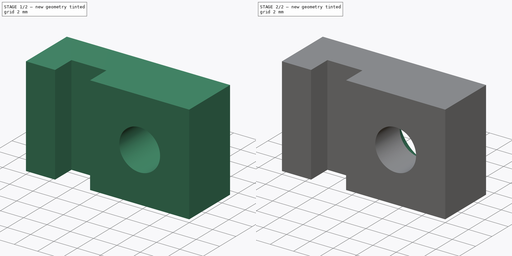
[diagram: build sequence overview — one tinted view per stage of 2, left to right]
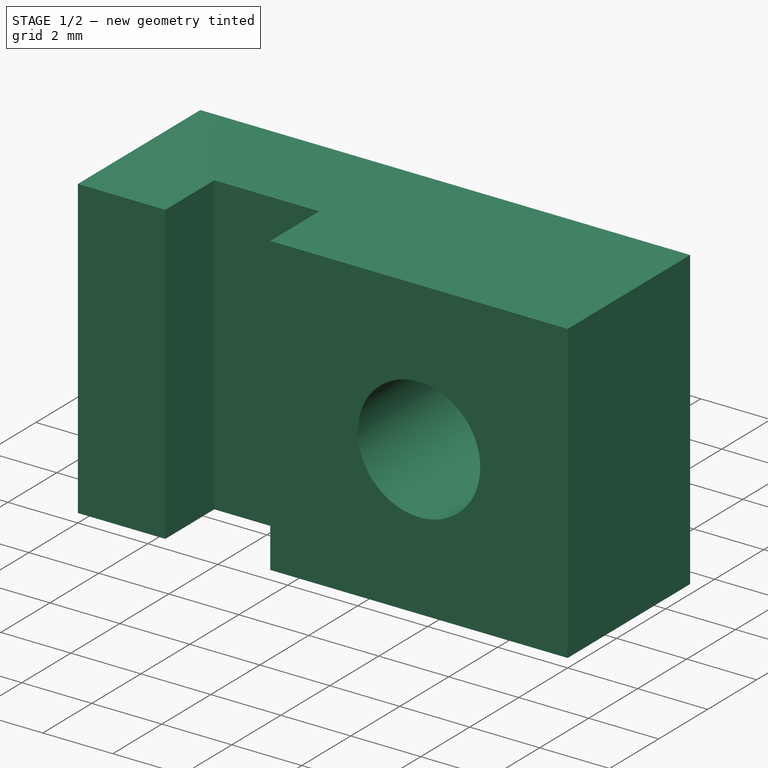
[diagram: stage 1 of 2 — iso view after this stage's code; geometry added in this stage tinted green]
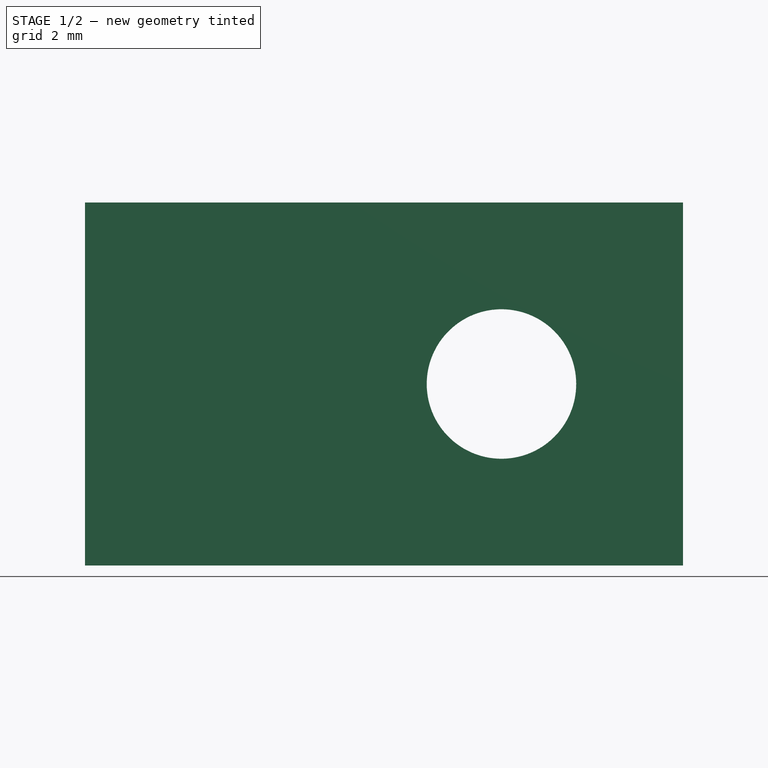
[diagram: stage 1 of 2 — front view after this stage's code; geometry added in this stage tinted green]
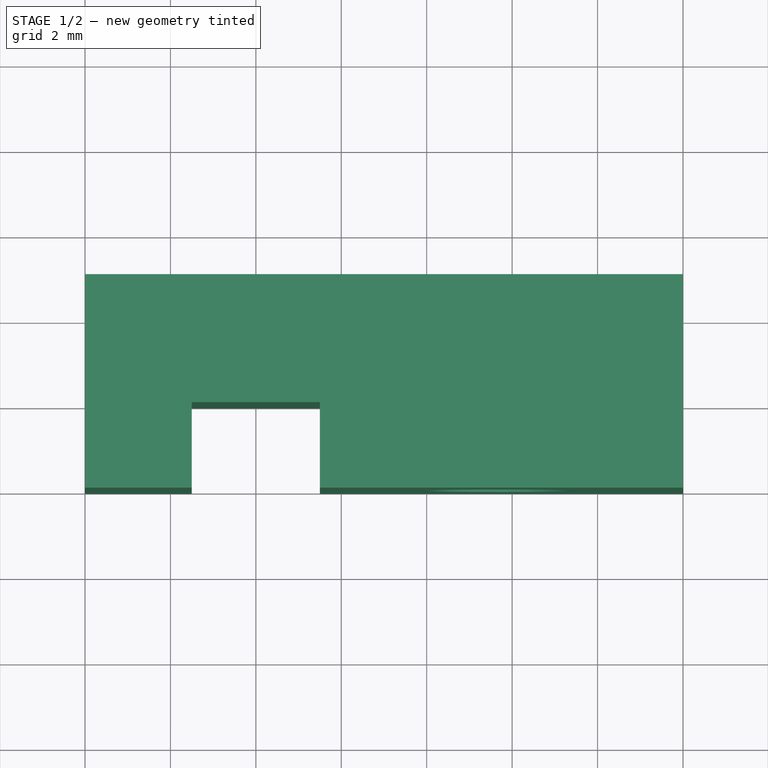
[diagram: stage 1 of 2 — top view after this stage's code; geometry added in this stage tinted green]
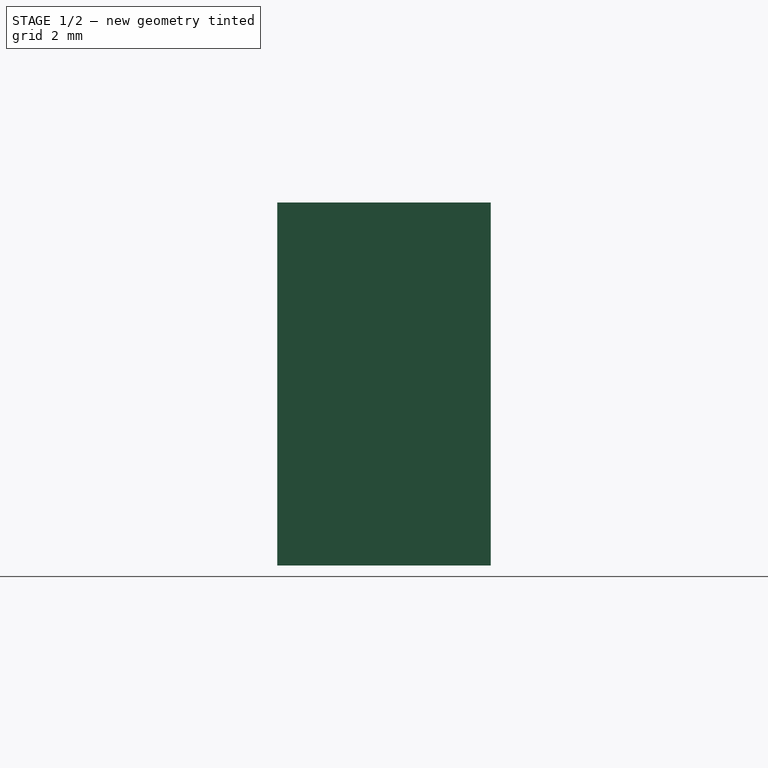
[diagram: stage 1 of 2 — right view after this stage's code; geometry added in this stage tinted green]
FCSTD DOCUMENT  (FreeCAD 0.19R)
Label: cable-tie-mount
License: All rights reserved
LicenseURL: http://en.wikipedia.org/wiki/All_rights_reserved
objects: Sketcher::SketchObject×2, PartDesign::Pad×1, PartDesign::Pocket×1, PartDesign::Chamfer×1, PartDesign::Body×1
note: 9 computed .brp shape members not serialized (recipe doc carries the construction recipe); baked Part::Feature solids carry a one-line shape summary decoded from their .brp

FEATURE [Sketcher::SketchObject] Sketch003  label="Sketch"
  FullyConstrained = true
  MapMode = 5
  Support = -> [XY_Plane001]
  sketch-geometry (8):
    g0: LineSegment StartX=0 StartY=0 StartZ=0 EndX=0 EndY=5 EndZ=0
    g1: LineSegment StartX=0 StartY=0 StartZ=0 EndX=2.5 EndY=0 EndZ=0
    g2: LineSegment StartX=2.5 StartY=0 StartZ=0 EndX=2.5 EndY=2 EndZ=0
    g3: LineSegment StartX=2.5 StartY=2 StartZ=0 EndX=5.5 EndY=2 EndZ=0
    g4: LineSegment StartX=5.5 StartY=2 StartZ=0 EndX=5.5 EndY=0 EndZ=0
    g5: LineSegment StartX=5.5 StartY=0 StartZ=0 EndX=14 EndY=0 EndZ=0
    g6: LineSegment StartX=14 StartY=0 StartZ=0 EndX=14 EndY=5 EndZ=0
    g7: LineSegment StartX=14 StartY=5 StartZ=0 EndX=0 EndY=5 EndZ=0
  constraints (23):
    c: Coincident(g0,g-1)
    c: PointOnObject(g0,g-2)
    c: Coincident(g1,g0)
    c: PointOnObject(g1,g-1)
    c: Coincident(g2,g1)
    c: Vertical(g2)
    c: Coincident(g3,g2)
    c: Horizontal(g3)
    c: Coincident(g4,g3)
    c: PointOnObject(g4,g-1)
    c: Coincident(g5,g4)
    c: PointOnObject(g5,g-1)
    c: Coincident(g6,g5)
    c: Vertical(g6)
    c: Coincident(g7,g6)
    c: Coincident(g7,g0)
    c: Vertical(g4)
    c: Horizontal(g7)
    c: DistanceX(g5,g5) = 8.5
    c: DistanceY(g6,g6) = 5
    c: DistanceX(g3,g3) = 3
    c: DistanceX(g1,g1) = 2.5
    c: DistanceY(g2,g2) = 2
FEATURE [PartDesign::Pad] Pad001  label="Pad"
  Direction = (1,1,1)
  Length = 8.5
  Length2 = 100
  Profile = -> Sketch003
  Type = 0
FEATURE [Sketcher::SketchObject] Sketch004  label="Sketch001"
  FullyConstrained = true
  MapMode = 5
  Placement = pos=(0,5,0) rot=(0,0.707107,0.707107;3.14159rad)
  Support = -> [Pad001]
  sketch-geometry (7):
    g0: LineSegment StartX=-5.5 StartY=0 StartZ=0 EndX=-14 EndY=0 EndZ=0
    g1: LineSegment StartX=-14 StartY=0 StartZ=0 EndX=-14 EndY=8.5 EndZ=0
    g2: LineSegment StartX=-14 StartY=8.5 StartZ=0 EndX=-5.5 EndY=8.5 EndZ=0
    g3: LineSegment StartX=-5.5 StartY=8.5 StartZ=0 EndX=-5.5 EndY=0 EndZ=0
    g4: LineSegment StartX=-14 StartY=0 StartZ=0 EndX=-5.5 EndY=8.5 EndZ=0
    g5: LineSegment StartX=-14 StartY=8.5 StartZ=0 EndX=-5.5 EndY=0 EndZ=0
    g6: Circle CenterX=-9.75 CenterY=4.25 CenterZ=0 NormalX=0 NormalY=0 NormalZ=1 AngleXU=0 Radius=1.75
  constraints (19):
    c: Coincident(g0,g1)
    c: Coincident(g1,g2)
    c: Coincident(g2,g3)
    c: Coincident(g3,g0)
    c: Horizontal(g0)
    c: Horizontal(g2)
    c: Vertical(g1)
    c: Vertical(g3)
    c: Equal(g2,g3)
    c: DistanceX(g2,g2) = 8.5
    c: Coincident(g4,g0)
    c: Coincident(g4,g2)
    c: Coincident(g5,g1)
    c: PointOnObject(g6,g4)
    c: PointOnObject(g6,g5)
    c: Diameter(g6) = 3.5
    c: Coincident(g5,g0)
    c: PointOnObject(g0,g-1)
    c: DistanceX(g0,g-1) = 5.5
FEATURE [PartDesign::Pocket] Pocket002  label="Pocket"
  BaseFeature = -> Pad001
  Length = 5
  Length2 = 100
  Profile = -> Sketch004
  Type = 1
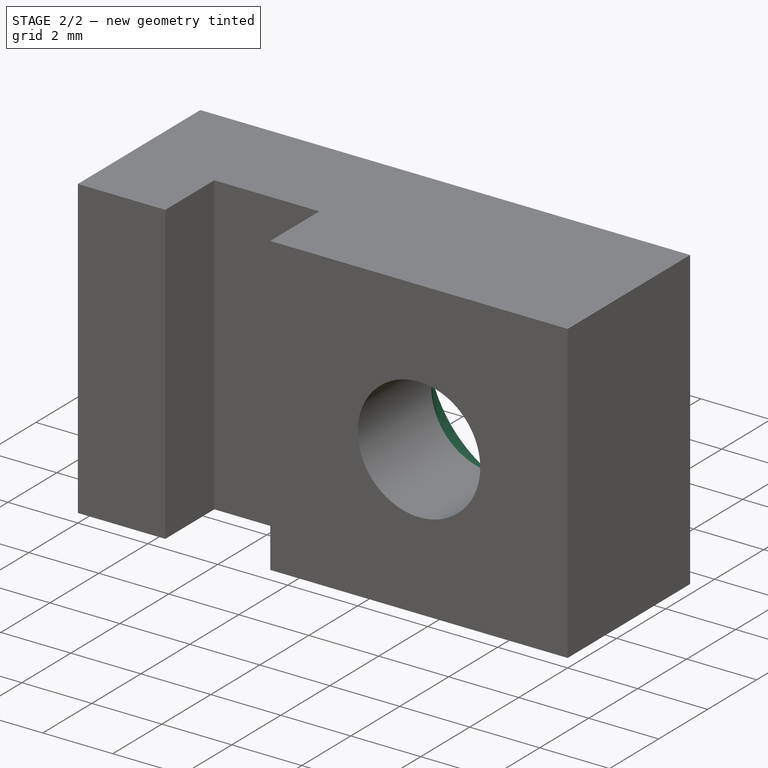
[diagram: stage 2 of 2 — iso view after this stage's code; geometry added in this stage tinted green]
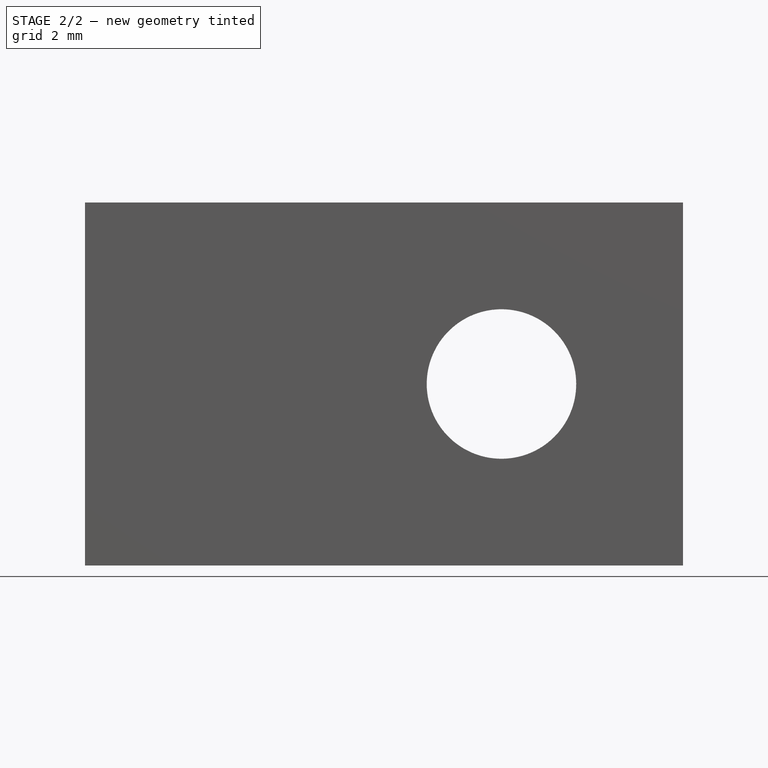
[diagram: stage 2 of 2 — front view after this stage's code; geometry added in this stage tinted green]
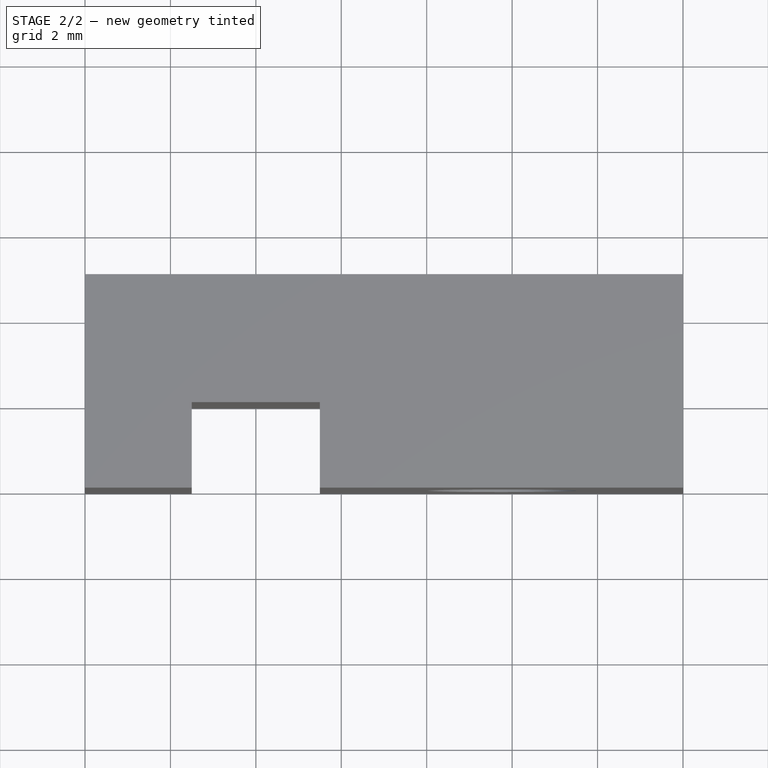
[diagram: stage 2 of 2 — top view after this stage's code; geometry added in this stage tinted green]
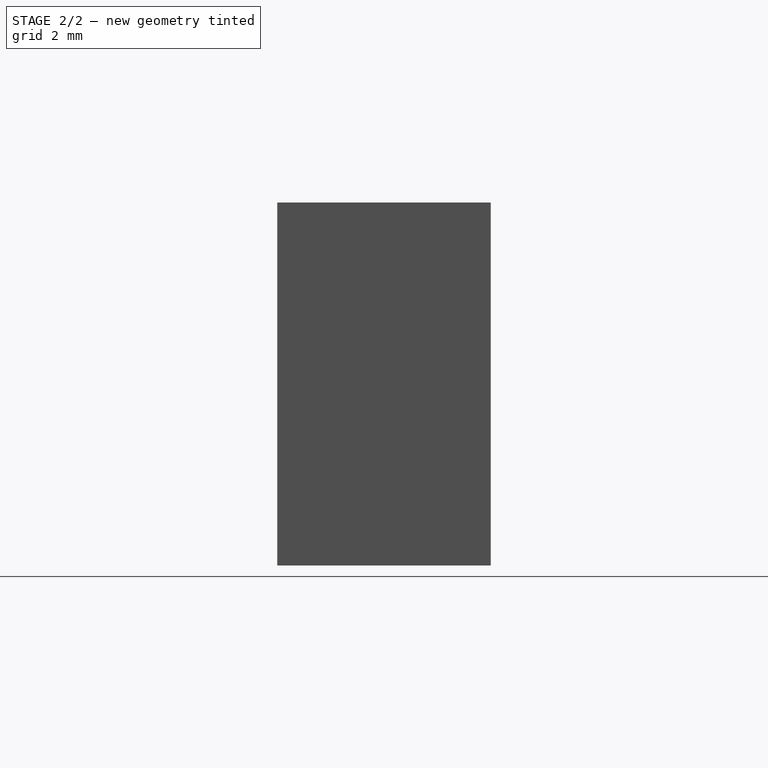
[diagram: stage 2 of 2 — right view after this stage's code; geometry added in this stage tinted green]
FEATURE [PartDesign::Chamfer] Chamfer002  label="Chamfer"
  Angle = 45
  Base = -> Pocket002 [Edge11]
  BaseFeature = -> Pocket002
  ChamferType = 1
  FlipDirection = false
  Size = 1.5
  Size2 = 2
  SupportTransform = false
FEATURE [PartDesign::Body] Body001  label="Body"
  Group = -> [Sketch003,Pad001,Sketch004,Pocket002,Chamfer002]
  Origin = -> Origin001
  Tip = -> Chamfer002
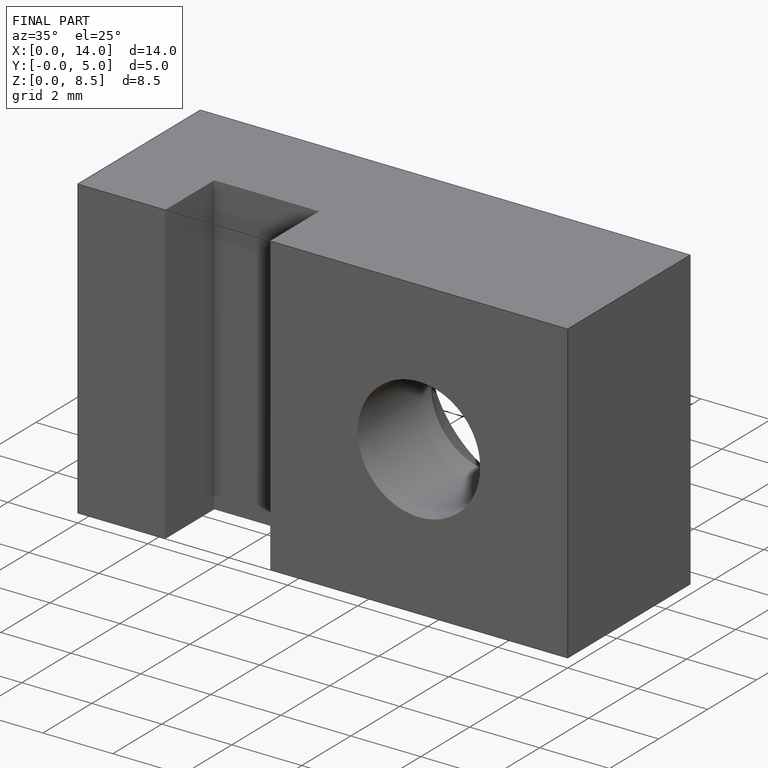
[diagram: finished part — iso view with bounding-box wireframe]
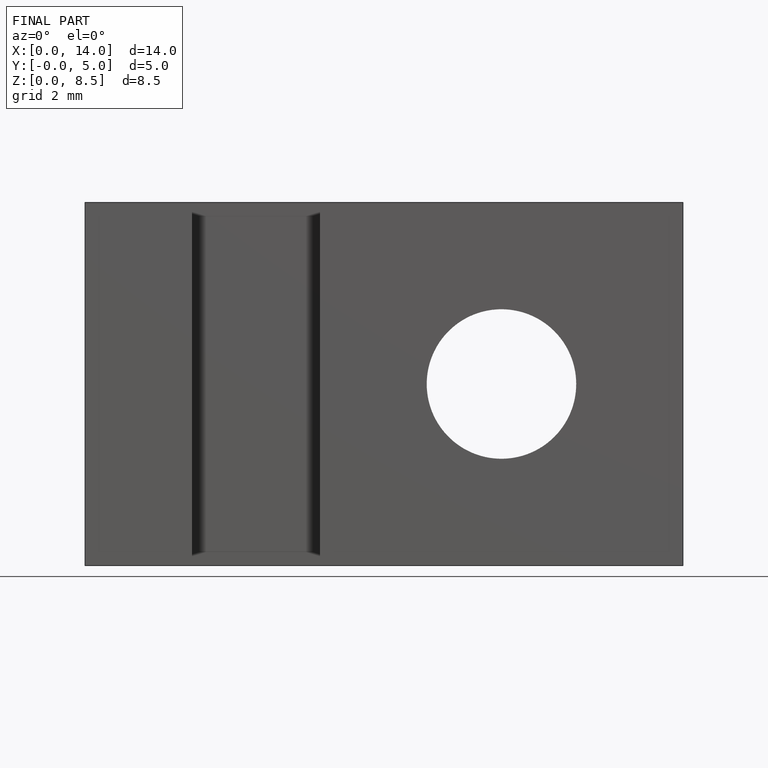
[diagram: finished part — front view with bounding-box wireframe]
